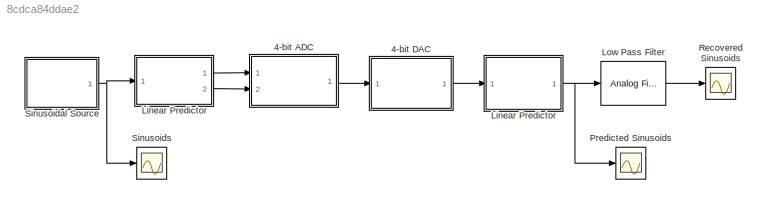
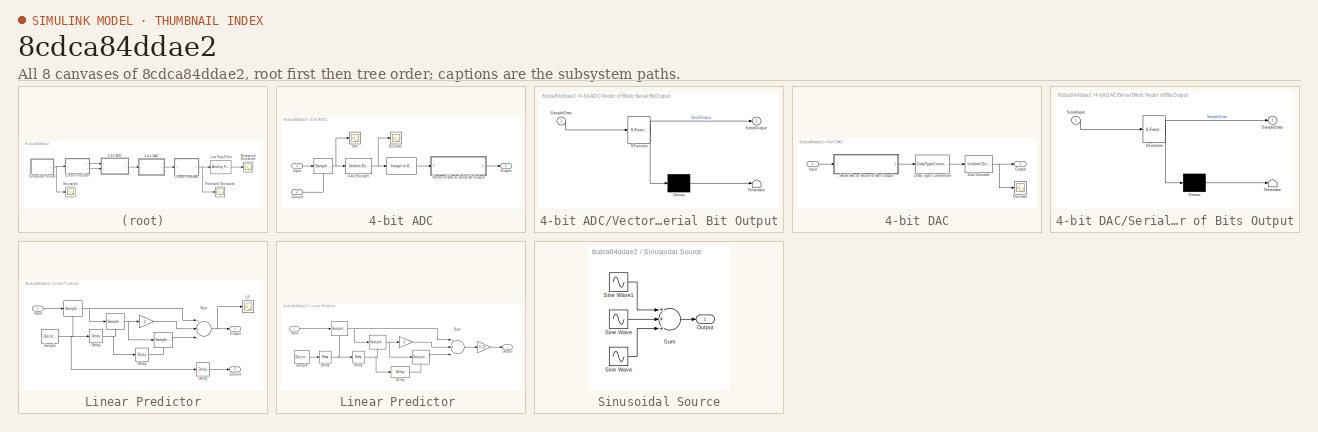
[diagram: thumbnail index - all 8 canvases of the model, root first then tree order]
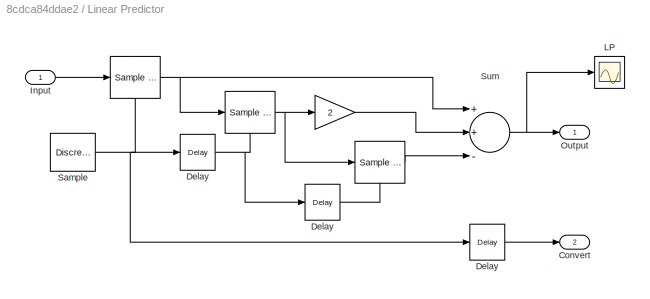
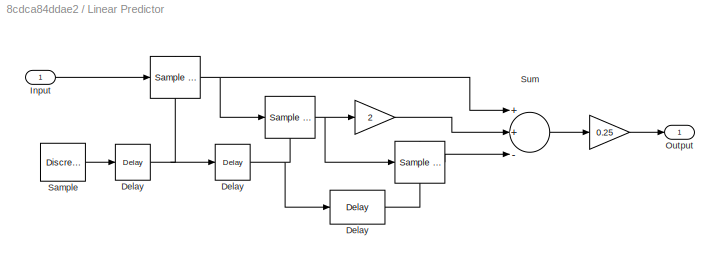
MODEL slx_8cdca84ddae2
KIND model
BLOCK [SubSystem] 4-bit ADC
  Ports = [2, 1]
  RequestExecContextInheritance = off
BLOCK [Reference] 4-bit ADC/   REF=commutil2/Integer to Bit
Converter
  Ports = [1, 1]
  SourceBlock = commutil2/Integer to Bit\nConverter
  SourceType = Integer to Bit Converter
  bitOrder = LSB first
  nbits = 4
  outDtype = uint8
  signedInputValues = Unsigned
BLOCK [Reference] 4-bit ADC/     REF=dspsigops/Sample
and Hold
  Ports = [1, 1, 0, 1]
  SourceBlock = dspsigops/Sample\nand Hold
  SourceType = Sample and Hold
  initCond = 0
  latchinput = off
  trig = Rising edge
BLOCK [Reference] 4-bit ADC/4-bit Encoder  REF=dspquant2/Uniform
Encoder
  Ports = [1, 1]
  SourceBlock = dspquant2/Uniform\nEncoder
  SourceType = Uniform Encoder
  bits = 4
  otype = Unsigned integer
  peak = 2.56
BLOCK [Inport] 4-bit ADC/Convert  
  IconDisplay = Port number
  Port = 2
BLOCK [Scope] 4-bit ADC/Encoder
  DataFormat = StructureWithTime
  Floating = off
  NumInputPorts = 1
  Ports = [1]
  SampleTime = 0
  SaveName = ScopeData3
  ShowLegends = off
  YMax = 20
  YMin = -10
BLOCK [Inport] 4-bit ADC/Input
  IconDisplay = Port number
BLOCK [Outport] 4-bit ADC/Output
  IconDisplay = Port number
BLOCK [Scope] 4-bit ADC/S//H
  DataFormat = StructureWithTime
  Floating = off
  NumInputPorts = 1
  Ports = [1]
  SampleTime = 0
  SaveName = ScopeData6
  ShowLegends = off
  YMax = 2.5
  YMin = -2.5
BLOCK [SubSystem] 4-bit ADC/Vector of Bits to Serial Bit Output
  ErrorFcn = Stateflow.Translate.translate
  PermitHierarchicalResolution = ExplicitOnly
  Ports = [1, 1]
  RequestExecContextInheritance = off
  SFBlockType = MATLAB Function
  TreatAsAtomicUnit = on
BLOCK [Demux] 4-bit ADC/Vector of Bits to Serial Bit Output/ Demux 
  Outputs = 1
  Ports = [1, 1]
BLOCK [S-Function] 4-bit ADC/Vector of Bits to Serial Bit Output/ SFunction 
  EnableBusSupport = on
  FunctionName = sf_sfun
  PortCounts = [1 2]
  Ports = [1, 2]
  Tag = Stateflow S-Function Fig430 2
BLOCK [Terminator] 4-bit ADC/Vector of Bits to Serial Bit Output/ Terminator 
BLOCK [Inport] 4-bit ADC/Vector of Bits to Serial Bit Output/SampleData
  IconDisplay = Port number
BLOCK [Outport] 4-bit ADC/Vector of Bits to Serial Bit Output/SerialOutput
  IconDisplay = Port number
BLOCK [SubSystem] 4-bit DAC
  Ports = [1, 1]
  RequestExecContextInheritance = off
BLOCK [Reference] 4-bit DAC/4-bit Decoder  REF=dspquant2/Uniform
Decoder
  Ports = [1, 1]
  SourceBlock = dspquant2/Uniform\nDecoder
  SourceType = Uniform Decoder
  bits = 4
  otype = Double
  overflowMode = Saturate
  peak = 2.56
BLOCK [DataTypeConversion] 4-bit DAC/Data Type Conversion
  LockScale = on
  OutDataTypeStr = fixdt('uint8', 'DataTypeOverride', 'Off')
  RndMeth = Floor
  SaturateOnIntegerOverflow = off
BLOCK [Scope] 4-bit DAC/Decoder
  DataFormat = StructureWithTime
  Floating = off
  NumInputPorts = 1
  Ports = [1]
  SampleTime = 0
  SaveName = ScopeData5
  ShowLegends = off
  YMax = 1.5
  YMin = -1.5
BLOCK [Inport] 4-bit DAC/Input
  IconDisplay = Port number
BLOCK [Outport] 4-bit DAC/Output
  IconDisplay = Port number
BLOCK [SubSystem] 4-bit DAC/Serial Bits to Vector of Bits Output
  ErrorFcn = Stateflow.Translate.translate
  PermitHierarchicalResolution = ExplicitOnly
  Ports = [1, 1]
  RequestExecContextInheritance = off
  SFBlockType = MATLAB Function
  TreatAsAtomicUnit = on
BLOCK [Demux] 4-bit DAC/Serial Bits to Vector of Bits Output/ Demux 
  Outputs = 1
  Ports = [1, 1]
BLOCK [S-Function] 4-bit DAC/Serial Bits to Vector of Bits Output/ SFunction 
  EnableBusSupport = on
  FunctionName = sf_sfun
  PortCounts = [1 2]
  Ports = [1, 2]
  Tag = Stateflow S-Function Fig430 1
BLOCK [Terminator] 4-bit DAC/Serial Bits to Vector of Bits Output/ Terminator 
BLOCK [Outport] 4-bit DAC/Serial Bits to Vector of Bits Output/SampleData
  IconDisplay = Port number
BLOCK [Inport] 4-bit DAC/Serial Bits to Vector of Bits Output/SerialInput
  IconDisplay = Port number
BLOCK [SubSystem] Linear Predictor
  Ports = [1, 2]
  RequestExecContextInheritance = off
BLOCK [SubSystem] Linear Predictor 
  Ports = [1, 1]
  RequestExecContextInheritance = off
BLOCK [Reference] Linear Predictor /    REF=dspsigops/Sample
and Hold
  Ports = [1, 1, 0, 1]
  SourceBlock = dspsigops/Sample\nand Hold
  SourceType = Sample and Hold
  initCond = 0
  latchinput = off
  trig = Rising edge
BLOCK [Reference] Linear Predictor /     REF=dspsigops/Sample
and Hold
  Ports = [1, 1, 0, 1]
  SourceBlock = dspsigops/Sample\nand Hold
  SourceType = Sample and Hold
  initCond = 0
  latchinput = off
  trig = Rising edge
BLOCK [Reference] Linear Predictor /      REF=dspsigops/Sample
and Hold
  Ports = [1, 1, 0, 1]
  SourceBlock = dspsigops/Sample\nand Hold
  SourceType = Sample and Hold
  initCond = 0
  latchinput = off
  trig = Rising edge
BLOCK [Gain] Linear Predictor /          
  Gain = 0.25
  OutDataTypeStr = Inherit: Inherit via internal rule
  ParamDataTypeStr = Inherit: Inherit via internal rule
  SaturateOnIntegerOverflow = off
BLOCK [Gain] Linear Predictor /           
  Gain = 2
  OutDataTypeStr = Inherit: Inherit via internal rule
  ParamDataTypeStr = Inherit: Inherit via internal rule
  SaturateOnIntegerOverflow = off
BLOCK [Reference] Linear Predictor /   Delay    REF=dspsigops/Delay
  InputProcessing = Inherited (this choice will be removed - see release notes)
  Ports = [1, 1]
  SourceBlock = dspsigops/Delay
  SourceType = Delay
  UserDataPersistent = on
  delay = 120
  dif_ic_for_ch = off
  dif_ic_for_dly = off
  dly_unit = Samples
  ic = 0
  ic_detail = off
  reset_popup = None
BLOCK [Reference] Linear Predictor /  Delay   REF=dspsigops/Delay
  InputProcessing = Inherited (this choice will be removed - see release notes)
  Ports = [1, 1]
  SourceBlock = dspsigops/Delay
  SourceType = Delay
  UserDataPersistent = on
  delay = 38
  dif_ic_for_ch = off
  dif_ic_for_dly = off
  dly_unit = Samples
  ic = 0
  ic_detail = off
  reset_popup = None
BLOCK [Reference] Linear Predictor /Delay  REF=dspsigops/Delay
  InputProcessing = Inherited (this choice will be removed - see release notes)
  Ports = [1, 1]
  SourceBlock = dspsigops/Delay
  SourceType = Delay
  UserDataPersistent = on
  delay = 40
  dif_ic_for_ch = off
  dif_ic_for_dly = off
  dly_unit = Samples
  ic = 0
  ic_detail = off
  reset_popup = None
BLOCK [Inport] Linear Predictor /Input
  IconDisplay = Port number
BLOCK [Outport] Linear Predictor /Output
  IconDisplay = Port number
BLOCK [DiscretePulseGenerator] Linear Predictor /Sample
  Period = 1.25e-4
  Ports = [0, 1]
  PulseType = Time based
  PulseWidth = 10
  SampleTime = 1.25e-6
BLOCK [Sum] Linear Predictor /Sum
  InputSameDT = off
  Inputs = ++-
  OutDataTypeStr = Inherit: Inherit via internal rule
  Ports = [3, 1]
  SaturateOnIntegerOverflow = off
BLOCK [Reference] Linear Predictor/     REF=dspsigops/Sample
and Hold
  Ports = [1, 1, 0, 1]
  SourceBlock = dspsigops/Sample\nand Hold
  SourceType = Sample and Hold
  initCond = 0
  latchinput = off
  trig = Rising edge
BLOCK [Reference] Linear Predictor/      REF=dspsigops/Sample
and Hold
  Ports = [1, 1, 0, 1]
  SourceBlock = dspsigops/Sample\nand Hold
  SourceType = Sample and Hold
  initCond = 0
  latchinput = off
  trig = Rising edge
BLOCK [Reference] Linear Predictor/        REF=dspsigops/Sample
and Hold
  Ports = [1, 1, 0, 1]
  SourceBlock = dspsigops/Sample\nand Hold
  SourceType = Sample and Hold
  initCond = 0
  latchinput = off
  trig = Rising edge
BLOCK [Gain] Linear Predictor/           
  Gain = 2
  OutDataTypeStr = Inherit: Inherit via internal rule
  ParamDataTypeStr = Inherit: Inherit via internal rule
  SaturateOnIntegerOverflow = off
BLOCK [Reference] Linear Predictor/ Delay    REF=dspsigops/Delay
  InputProcessing = Inherited (this choice will be removed - see release notes)
  Ports = [1, 1]
  SourceBlock = dspsigops/Delay
  SourceType = Delay
  UserDataPersistent = on
  delay = 80
  dif_ic_for_ch = off
  dif_ic_for_dly = off
  dly_unit = Samples
  ic = 0
  ic_detail = off
  reset_popup = None
BLOCK [Outport] Linear Predictor/Convert
  IconDisplay = Port number
  Port = 2
BLOCK [Reference] Linear Predictor/Delay  REF=dspsigops/Delay
  InputProcessing = Inherited (this choice will be removed - see release notes)
  Ports = [1, 1]
  SourceBlock = dspsigops/Delay
  SourceType = Delay
  UserDataPersistent = on
  delay = 40
  dif_ic_for_ch = off
  dif_ic_for_dly = off
  dly_unit = Samples
  ic = 0
  ic_detail = off
  reset_popup = None
BLOCK [Reference] Linear Predictor/Delay   REF=dspsigops/Delay
  InputProcessing = Inherited (this choice will be removed - see release notes)
  Ports = [1, 1]
  SourceBlock = dspsigops/Delay
  SourceType = Delay
  UserDataPersistent = on
  delay = 78
  dif_ic_for_ch = off
  dif_ic_for_dly = off
  dly_unit = Samples
  ic = 0
  ic_detail = off
  reset_popup = None
BLOCK [Inport] Linear Predictor/Input
  IconDisplay = Port number
BLOCK [Scope] Linear Predictor/LP
  DataFormat = StructureWithTime
  Floating = off
  NumInputPorts = 1
  Ports = [1]
  SampleTime = 0
  SaveName = ScopeData1
  ShowLegends = off
  YMax = 2.5
  YMin = -2.5
BLOCK [Outport] Linear Predictor/Output
  IconDisplay = Port number
BLOCK [DiscretePulseGenerator] Linear Predictor/Sample
  Period = 1.25e-4
  Ports = [0, 1]
  PulseType = Time based
  PulseWidth = 10
  SampleTime = 1.25e-6
BLOCK [Sum] Linear Predictor/Sum
  InputSameDT = off
  Inputs = ++-
  OutDataTypeStr = Inherit: Inherit via internal rule
  Ports = [3, 1]
  SaturateOnIntegerOverflow = off
BLOCK [Reference] Low Pass Filter  REF=dsparch4/Analog
Filter Design
  N = 9
  Ports = [1, 1]
  Rp = 2
  Rs = 40
  SourceBlock = dsparch4/Analog\nFilter Design
  SourceType = Analog Filter Design
  Whi = 80
  Wlo = 7500*pi
  filttype = Lowpass
  method = Butterworth
BLOCK [Scope] Predicted Sinusoids
  DataFormat = StructureWithTime
  Floating = off
  NumInputPorts = 1
  Ports = [1]
  SampleTime = 0
  ShowLegends = off
  YMax = 1.5
  YMin = -1.5
BLOCK [Scope] Recovered Sinusoids
  DataFormat = StructureWithTime
  Floating = off
  NumInputPorts = 1
  Ports = [1]
  SampleTime = 0
  SaveName = ScopeData4
  ShowLegends = off
  YMax = 1.5
  YMin = -1.5
BLOCK [SubSystem] Sinusoidal Source
  Ports = [0, 1]
  RequestExecContextInheritance = off
BLOCK [Sin] Sinusoidal Source/ Sine Wave 
  Amplitude = 0.2
  Frequency = 5000*pi
  Ports = [0, 1]
  SampleTime = 1.5625e-6
BLOCK [Outport] Sinusoidal Source/Output
  IconDisplay = Port number
BLOCK [Sin] Sinusoidal Source/Sine Wave 
  Amplitude = 0.5
  Frequency = 3000*pi
  Ports = [0, 1]
  SampleTime = 1.5625e-6
BLOCK [Sin] Sinusoidal Source/Sine Wave1
  Frequency = 1000*pi
  Ports = [0, 1]
  SampleTime = 1.5625e-6
BLOCK [Sum] Sinusoidal Source/Sum
  InputSameDT = off
  Inputs = +++
  OutDataTypeStr = Inherit: Inherit via internal rule
  Ports = [3, 1]
  SaturateOnIntegerOverflow = off
BLOCK [Scope] Sinusoids
  DataFormat = StructureWithTime
  Floating = off
  NumInputPorts = 1
  Ports = [1]
  SampleTime = 0
  SaveName = ScopeData2
  ShowLegends = off
  YMax = 1.5
  YMin = -1.5
NET 4-bit ADC/   :1 -> 4-bit ADC/4-bit Encoder:1, 4-bit ADC/S//H:1
LINE 4-bit ADC/ :1 -> 4-bit ADC/Vector of Bits to Serial Bit Output:1
NET 4-bit ADC/4-bit Encoder:1 -> 4-bit ADC/ :1, 4-bit ADC/Encoder:1
LINE 4-bit ADC/Convert  :1 -> 4-bit ADC/   :trigger
LINE 4-bit ADC/Input:1 -> 4-bit ADC/   :1
LINE 4-bit ADC/Vector of Bits to Serial Bit Output:1 -> 4-bit ADC/Output:1
LINE 4-bit ADC:1 -> 4-bit DAC:1
NET 4-bit DAC/4-bit Decoder:1 -> 4-bit DAC/Decoder:1, 4-bit DAC/Output:1
LINE 4-bit DAC/Data Type Conversion:1 -> 4-bit DAC/4-bit Decoder:1
LINE 4-bit DAC/Input:1 -> 4-bit DAC/Serial Bits to Vector of Bits Output:1
LINE 4-bit DAC/Serial Bits to Vector of Bits Output:1 -> 4-bit DAC/Data Type Conversion:1
LINE 4-bit DAC:1 -> Linear Predictor :1
LINE Linear Predictor /           :1 -> Linear Predictor /Sum:2
LINE Linear Predictor /          :1 -> Linear Predictor /Output:1
NET Linear Predictor /    :1 -> Linear Predictor /           :1, Linear Predictor /  :1
NET Linear Predictor /   :1 -> Linear Predictor /    :1, Linear Predictor /Sum:1
LINE Linear Predictor /   Delay  :1 -> Linear Predictor /  :trigger
LINE Linear Predictor /  :1 -> Linear Predictor /Sum:3
NET Linear Predictor /  Delay :1 -> Linear Predictor /    :trigger, Linear Predictor /   Delay  :1
NET Linear Predictor /Delay:1 -> Linear Predictor /   :trigger, Linear Predictor /  Delay :1
LINE Linear Predictor /Input:1 -> Linear Predictor /   :1
LINE Linear Predictor /Sample:1 -> Linear Predictor /Delay:1
LINE Linear Predictor /Sum:1 -> Linear Predictor /          :1
NET Linear Predictor :1 -> Low Pass Filter:1, Predicted Sinusoids:1
LINE Linear Predictor/           :1 -> Linear Predictor/Sum:2
LINE Linear Predictor/      :1 -> Linear Predictor/Sum:3
NET Linear Predictor/    :1 -> Linear Predictor/           :1, Linear Predictor/      :1
NET Linear Predictor/   :1 -> Linear Predictor/    :1, Linear Predictor/Sum:1
LINE Linear Predictor/ Delay  :1 -> Linear Predictor/      :trigger
NET Linear Predictor/Delay :1 -> Linear Predictor/    :trigger, Linear Predictor/ Delay  :1
LINE Linear Predictor/Delay:1 -> Linear Predictor/Convert:1
LINE Linear Predictor/Input:1 -> Linear Predictor/   :1
NET Linear Predictor/Sample:1 -> Linear Predictor/   :trigger, Linear Predictor/Delay :1, Linear Predictor/Delay:1
NET Linear Predictor/Sum:1 -> Linear Predictor/LP:1, Linear Predictor/Output:1
LINE Linear Predictor:1 -> 4-bit ADC:1
LINE Linear Predictor:2 -> 4-bit ADC:2
LINE Low Pass Filter:1 -> Recovered Sinusoids:1
LINE Sinusoidal Source/ Sine Wave :1 -> Sinusoidal Source/Sum:3
LINE Sinusoidal Source/Sine Wave :1 -> Sinusoidal Source/Sum:2
LINE Sinusoidal Source/Sine Wave1:1 -> Sinusoidal Source/Sum:1
LINE Sinusoidal Source/Sum:1 -> Sinusoidal Source/Output:1
NET Sinusoidal Source:1 -> Linear Predictor:1, Sinusoids:1
note: NET lines group one-source signal fan-out (src -> all destinations, sorted); 1:1 wires keep LINE
CHART 4-bit DAC/Serial Bits to Vector
of Bits Output states=1 transitions=1
  STATE_LABEL 'eML_blk_kernel()'
  STATE_LABEL 'SCRIPT:\nfunction SampleData = fcn(SerialInput)\n%#codegen\n\npersistent SmpDat  SmpNum SmpDatOld\n\nif isempty(SmpNum)\n    SmpNum = 0;\n    SmpDat = 0;\n    SmpDatOld = 0;\n    SampleData = 0;\nend\n\nSmpNum = SmpNum + 1;\nif (SmpNum == 5)\n    SmpNum = 1;\n    SampleData = SmpDat;\n    SmpDatOld = SmpDat;\n    SmpDat = SerialInput;\nelse\n    SampleData = SmpDatOld;\n    SmpDat = SmpDat + SerialInput*2^(SmpNum-1);\n...<+10ch>'
CHART 4-bit ADC/Vector of Bits to
Serial Bit Output states=1 transitions=1
  STATE_LABEL 'eML_blk_kernel()'
  STATE_LABEL 'SCRIPT:\nfunction SerialOutput = fcn(SampleData)\n%#codegen\npersistent SmpDat SmpNum\n\nif isempty(SmpNum)\n    SmpNum = 1;\n    SmpDat = SampleData;\nend\n\nSerialOutput = SampleData(SmpNum);\nSmpNum = SmpNum + 1;\nif (SmpNum == 5)\n    SmpNum = 1;\n    SmpDat = SampleData;\nend\n\nend\n\n'
